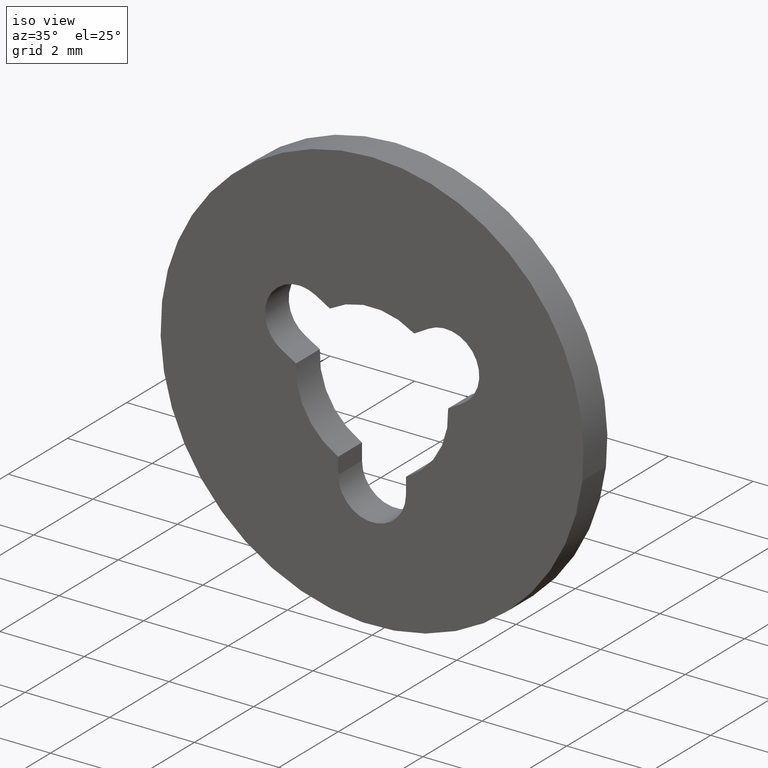
[diagram: clean part render]
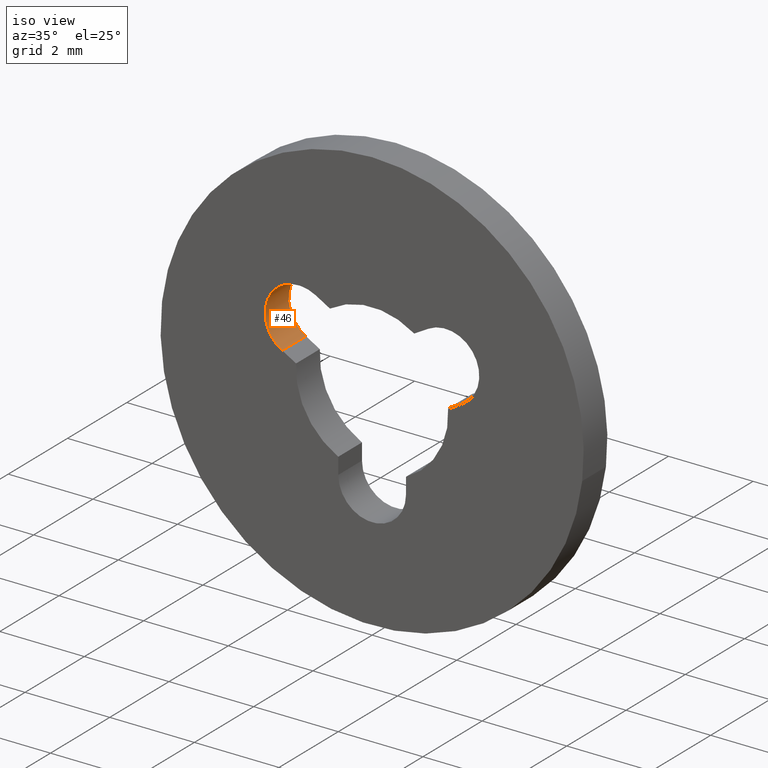
[diagram: same view with one face highlighted and labeled with its STEP entity id]
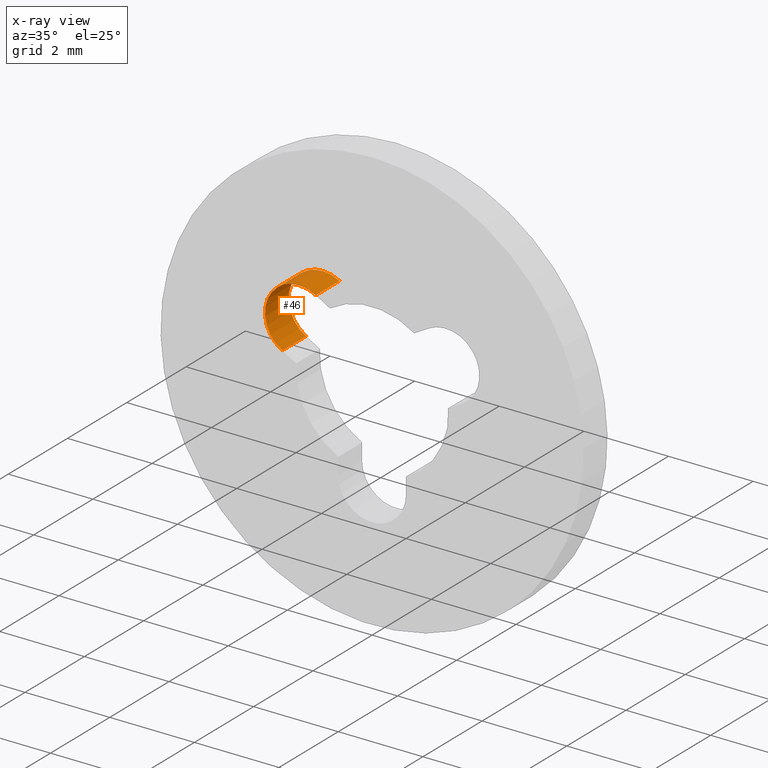
[diagram: x-ray of the same camera — body ghosted, the highlighted face saturated]
A machine part, iso view. The second image highlights one B-rep face of the part: STEP entity #46.
The next image is the same camera in x-ray: the body ghosted, the highlighted face saturated — about 0% of this face is hidden behind the body in this view.
In plain terms, the highlighted cylindrical surface (partial cylindrical patch) has radius 0.8 mm, axis along (-0, -1, -0).
Its self-contained STEP definition (entity closure, byte-faithful):
#46=ADVANCED_FACE('',(#119),#118,.F.);
#118=CYLINDRICAL_SURFACE('',#253,8.00016052489E-01);
#119=FACE_OUTER_BOUND('',#254,.T.);
#250=CARTESIAN_POINT('',(-1.73207188998E+00,-2.05000000000E-02,1.00000265078E+00));
#251=DIRECTION('',(-0.00000000000E+00,-1.00000000000E+00,-0.00000000000E+00));
#252=DIRECTION('',(8.65979310119E-01,0.00000000000E+00,-5.00079828073E-01));
#253=AXIS2_PLACEMENT_3D('',#250,#251,#252);
#254=EDGE_LOOP('',(#346,#347,#348,#349));
#346=ORIENTED_EDGE('',*,*,#411,.T.);
#347=ORIENTED_EDGE('',*,*,#422,.F.);
#348=ORIENTED_EDGE('',*,*,#399,.F.);
#349=ORIENTED_EDGE('',*,*,#423,.T.);
#399=EDGE_CURVE('',#503,#510,#511,.T.);
#411=EDGE_CURVE('',#594,#587,#595,.T.);
#422=EDGE_CURVE('',#510,#587,#666,.T.);
#423=EDGE_CURVE('',#503,#594,#672,.T.);
#503=VERTEX_POINT('',#774);
#510=VERTEX_POINT('',#778);
#511=CIRCLE('',#782,8.00016052489E-01);
#587=VERTEX_POINT('',#829);
#594=VERTEX_POINT('',#833);
#595=CIRCLE('',#837,8.00016052489E-01);
#666=LINE('',#876,#877);
#672=LINE('',#879,#880);
#774=CARTESIAN_POINT('',(-1.33200000000E+00,8.00000000000E-01,1.69280000000E+00));
#778=CARTESIAN_POINT('',(-2.12312334425E+00,8.00000000000E-01,3.02073969353E-01));
#779=CARTESIAN_POINT('',(-1.73207188998E+00,8.00000000000E-01,1.00000265078E+00));
#780=DIRECTION('',(-7.98188607277E-17,-1.00000000000E+00,4.60932515168E-17));
#781=DIRECTION('',(5.00079828073E-01,1.95274634803E-32,8.65979310119E-01));
#782=AXIS2_PLACEMENT_3D('',#779,#780,#781);
#829=CARTESIAN_POINT('',(-2.12312334425E+00,0.00000000000E+00,3.02073969353E-01));
#833=CARTESIAN_POINT('',(-1.33200000000E+00,0.00000000000E+00,1.69280000000E+00));
#834=CARTESIAN_POINT('',(-1.73207188998E+00,0.00000000000E+00,1.00000265078E+00));
#835=DIRECTION('',(0.00000000000E+00,-1.00000000000E+00,0.00000000000E+00));
#836=DIRECTION('',(5.00079828073E-01,0.00000000000E+00,8.65979310119E-01));
#837=AXIS2_PLACEMENT_3D('',#834,#835,#836);
#876=CARTESIAN_POINT('',(-2.12312334425E+00,8.00000000000E-01,3.02073969353E-01));
#877=VECTOR('',#878,8.00000000000E-01);
#878=DIRECTION('',(0.00000000000E+00,-1.00000000000E+00,0.00000000000E+00));
#879=CARTESIAN_POINT('',(-1.33200000000E+00,8.00000000000E-01,1.69280000000E+00));
#880=VECTOR('',#881,8.00000000000E-01);
#881=DIRECTION('',(0.00000000000E+00,-1.00000000000E+00,0.00000000000E+00));